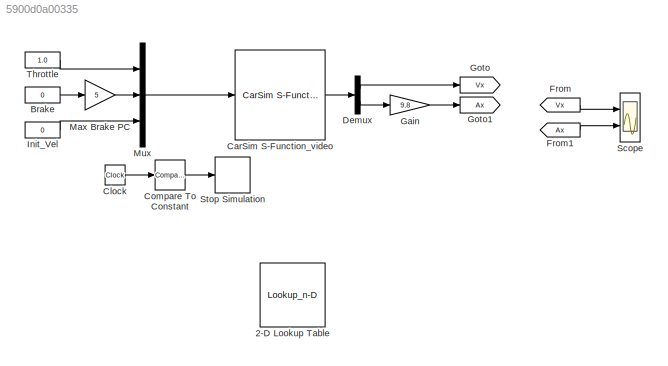
MODEL slx_5900d0a00335
KIND model
CONFIG AbsTol = auto
CONFIG EnableMultiTasking = off
CONFIG FixedStep = auto
CONFIG MaxStep = auto
CONFIG MinStep = auto
CONFIG RelTol = 1e-3
CONFIG SampleTimeConstraint = Unconstrained
CONFIG SolverName = VariableStepAuto
CONFIG StartTime = 0.0
CONFIG StopTime = 60
BLOCK [Lookup_n-D] 2-D Lookup Table
  BreakpointsForDimension1 = Accreq_valueY
  BreakpointsForDimension2 = Vehspd_valueX
  InputPortMap = u0,u1
  InternalRulePriority = Speed
  Ports = [2, 1]
  RndMeth = Simplest
  Table = Openness_valueZ
BLOCK [Constant] Brake
  Value = 0
BLOCK [Reference] CarSim S-Function_video  REF=Solver_SF/CarSim S-Function_video
  Ports = [1, 1]
  Priority = 1
  SourceBlock = Solver_SF/CarSim S-Function_video
  SourceProductName = CarSim S-Function
  SourceType = Vehicle math model library
BLOCK [Clock] Clock
BLOCK [Reference] Compare To Constant  REF=simulink/Logic and Bit
Operations/Compare
To Constant
  Ports = [1, 1]
  SourceBlock = simulink/Logic and Bit\nOperations/Compare\nTo Constant
  SourceProductBaseCode = SL
  SourceType = Compare To Constant
BLOCK [Demux] Demux
  Outputs = 2
  Ports = [1, 2]
BLOCK [From] From
  GotoTag = Vx
BLOCK [From] From1
  GotoTag = Ax
BLOCK [Gain] Gain
  Gain = 9.8
BLOCK [Goto] Goto
  GotoTag = Vx
BLOCK [Goto] Goto1
  GotoTag = Ax
BLOCK [Constant] Init_Vel
  Value = 0
BLOCK [Gain] Max Brake PC
  Gain = 5
BLOCK [Mux] Mux
  DisplayOption = bar
  Inputs = 3
  Ports = [3, 1]
BLOCK [Scope] Scope
  Floating = off
  NumInputPorts = 2
  Ports = [2]
  ScopeSpecificationString = Simulink.scopes.TimeScopeBlockCfg('CurrentConfiguration', extmgr.ConfigurationSet(extmgr.Configuration('Core','General UI',true),extmgr.Configuration('Core','Source UI',true),extmgr.Configuration('Sources','WiredSimulink',true),extmgr.Configuration('Visuals','Time Domain',true,'SerializedDisplays',{struct('MinYLimReal','-19.79506','MaxYLimReal','178.15556','YLabelReal','','MinYLimMag','0.00000','M...<+2068ch>
BLOCK [Stop] Stop Simulation
BLOCK [Constant] Throttle
  Value = 1.0
LINE Brake:1 -> Max Brake PC:1
LINE CarSim S-Function_video:1 -> Demux:1
LINE Clock:1 -> Compare To Constant:1
LINE Compare To Constant:1 -> Stop Simulation:1
LINE Demux:1 -> Goto:1
LINE Demux:2 -> Gain:1
LINE From1:1 -> Scope:2
LINE From:1 -> Scope:1
LINE Gain:1 -> Goto1:1
LINE Init_Vel:1 -> Mux:3
LINE Max Brake PC:1 -> Mux:2
LINE Mux:1 -> CarSim S-Function_video:1
LINE Throttle:1 -> Mux:1
